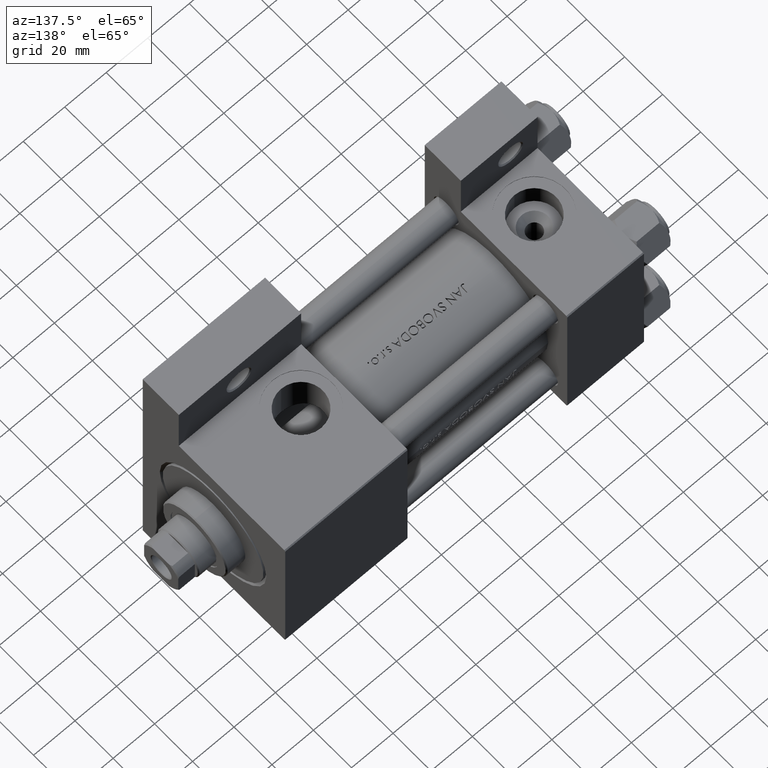
[diagram: clean part render]
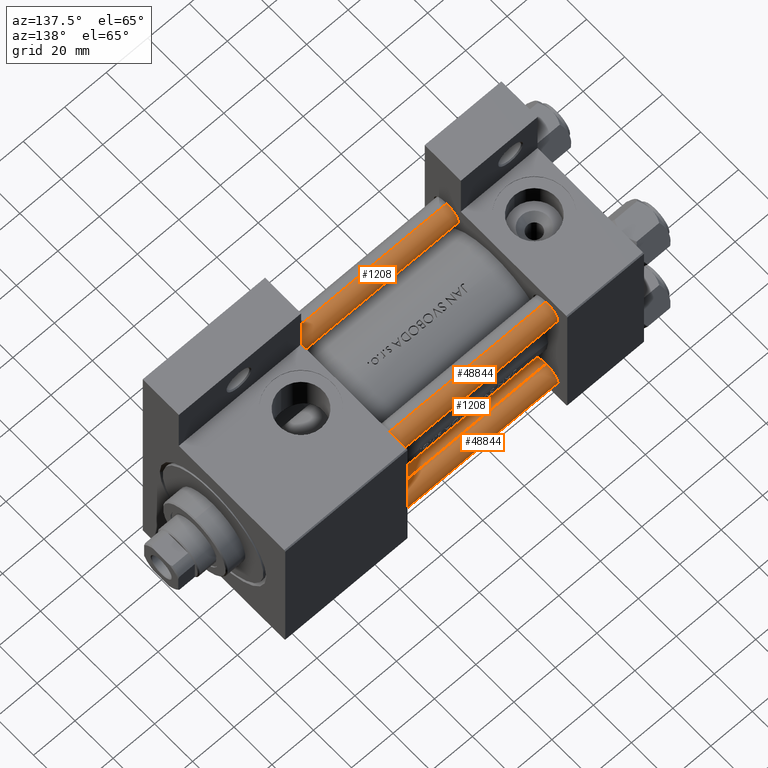
[diagram: same view with one multi-face feature highlighted, each face labeled with its STEP entity id]
A machine part, auxiliary view. The highlighted faces form ONE feature: a constant-radius fillet chain: 4 tangent blend faces with common blend radius 6 mm. The faces share edges in the B-rep.
Their STEP definitions:
[1] entity #48844 (Cylinder):
#1151 = CIRCLE ( 'NONE', #34580, 6.000000000000000888 ) ;
#2144 = EDGE_CURVE ( 'NONE', #30320, #35912, #23430, .T. ) ;
#2688 = CARTESIAN_POINT ( 'NONE',  ( 6.000000000000000888, 7.347880794884120722E-16, 143.0000000000000000 ) ) ;
#3276 = CARTESIAN_POINT ( 'NONE',  ( -6.000000000000000888, 0.000000000000000000, 142.5000000000000000 ) ) ;
#3711 = ORIENTED_EDGE ( 'NONE', *, *, #45344, .T. ) ;
#5593 = CYLINDRICAL_SURFACE ( 'NONE', #22602, 6.000000000000000888 ) ;
#5954 = ORIENTED_EDGE ( 'NONE', *, *, #2144, .T. ) ;
#6485 = CARTESIAN_POINT ( 'NONE',  ( -6.000000000000000888, 0.000000000000000000, 0.5000000000000281997 ) ) ;
#8303 = AXIS2_PLACEMENT_3D ( 'NONE', #24395, #20905, #15927 ) ;
#8480 = CARTESIAN_POINT ( 'NONE',  ( 6.000000000000000888, 7.347880794884120722E-16, 142.5000000000000000 ) ) ;
#9822 = CARTESIAN_POINT ( 'NONE',  ( 0.000000000000000000, 0.000000000000000000, 143.0000000000000000 ) ) ;
#11067 = CARTESIAN_POINT ( 'NONE',  ( 6.000000000000000888, 7.347880794884120722E-16, 0.5000000000000281997 ) ) ;
#11159 = VECTOR ( 'NONE', #22698, 1000.000000000000000 ) ;
#12402 = ORIENTED_EDGE ( 'NONE', *, *, #21842, .F. ) ;
#13829 = VERTEX_POINT ( 'NONE', #6485 ) ;
#15927 = DIRECTION ( 'NONE',  ( 1.000000000000000000, 0.000000000000000000, 0.000000000000000000 ) ) ;
#16566 = FACE_OUTER_BOUND ( 'NONE', #30965, .T. ) ;
#16859 = DIRECTION ( 'NONE',  ( 1.000000000000000000, 0.000000000000000000, 0.000000000000000000 ) ) ;
#18944 = LINE ( 'NONE', #38856, #11159 ) ;
#20624 = CARTESIAN_POINT ( 'NONE',  ( 0.000000000000000000, 0.000000000000000000, 0.5000000000000281997 ) ) ;
#20905 = DIRECTION ( 'NONE',  ( 0.000000000000000000, 0.000000000000000000, -1.000000000000000000 ) ) ;
#21842 = EDGE_CURVE ( 'NONE', #30320, #13829, #18944, .T. ) ;
#22602 = AXIS2_PLACEMENT_3D ( 'NONE', #9822, #32519, #35510 ) ;
#22698 = DIRECTION ( 'NONE',  ( -0.000000000000000000, -0.000000000000000000, -1.000000000000000000 ) ) ;
#23430 = CIRCLE ( 'NONE', #8303, 6.000000000000000888 ) ;
#24395 = CARTESIAN_POINT ( 'NONE',  ( 0.000000000000000000, 0.000000000000000000, 142.5000000000000000 ) ) ;
#30320 = VERTEX_POINT ( 'NONE', #3276 ) ;
#30965 = EDGE_LOOP ( 'NONE', ( #5954, #3711, #36803, #12402 ) ) ;
#32519 = DIRECTION ( 'NONE',  ( -0.000000000000000000, -0.000000000000000000, -1.000000000000000000 ) ) ;
#34580 = AXIS2_PLACEMENT_3D ( 'NONE', #20624, #43764, #16859 ) ;
#35510 = DIRECTION ( 'NONE',  ( -1.000000000000000000, 0.000000000000000000, 0.000000000000000000 ) ) ;
#35912 = VERTEX_POINT ( 'NONE', #8480 ) ;
#36803 = ORIENTED_EDGE ( 'NONE', *, *, #38517, .T. ) ;
#36823 = LINE ( 'NONE', #2688, #39947 ) ;
#38517 = EDGE_CURVE ( 'NONE', #42749, #13829, #1151, .T. ) ;
#38856 = CARTESIAN_POINT ( 'NONE',  ( -6.000000000000000888, 0.000000000000000000, 143.0000000000000000 ) ) ;
#39947 = VECTOR ( 'NONE', #43806, 1000.000000000000000 ) ;
#42749 = VERTEX_POINT ( 'NONE', #11067 ) ;
#43764 = DIRECTION ( 'NONE',  ( -0.000000000000000000, -0.000000000000000000, 1.000000000000000000 ) ) ;
#43806 = DIRECTION ( 'NONE',  ( -0.000000000000000000, -0.000000000000000000, -1.000000000000000000 ) ) ;
#45344 = EDGE_CURVE ( 'NONE', #35912, #42749, #36823, .T. ) ;
#48844 = ADVANCED_FACE ( 'NONE', ( #16566 ), #5593, .T. ) ;
[2] entity #1208 (Cylinder):
#1208 = ADVANCED_FACE ( 'NONE', ( #49096 ), #21751, .T. ) ;
#1222 = EDGE_CURVE ( 'NONE', #35912, #30320, #20227, .T. ) ;
#2688 = CARTESIAN_POINT ( 'NONE',  ( 6.000000000000000888, 7.347880794884120722E-16, 143.0000000000000000 ) ) ;
#3276 = CARTESIAN_POINT ( 'NONE',  ( -6.000000000000000888, 0.000000000000000000, 142.5000000000000000 ) ) ;
#4270 = AXIS2_PLACEMENT_3D ( 'NONE', #6659, #14144, #43350 ) ;
#6485 = CARTESIAN_POINT ( 'NONE',  ( -6.000000000000000888, 0.000000000000000000, 0.5000000000000281997 ) ) ;
#6545 = CARTESIAN_POINT ( 'NONE',  ( 0.000000000000000000, 0.000000000000000000, 143.0000000000000000 ) ) ;
#6659 = CARTESIAN_POINT ( 'NONE',  ( 0.000000000000000000, 0.000000000000000000, 0.5000000000000281997 ) ) ;
#6795 = CARTESIAN_POINT ( 'NONE',  ( 0.000000000000000000, 0.000000000000000000, 142.5000000000000000 ) ) ;
#7485 = AXIS2_PLACEMENT_3D ( 'NONE', #6545, #25988, #40907 ) ;
#8480 = CARTESIAN_POINT ( 'NONE',  ( 6.000000000000000888, 7.347880794884120722E-16, 142.5000000000000000 ) ) ;
#11067 = CARTESIAN_POINT ( 'NONE',  ( 6.000000000000000888, 7.347880794884120722E-16, 0.5000000000000281997 ) ) ;
#11159 = VECTOR ( 'NONE', #22698, 1000.000000000000000 ) ;
#12608 = ORIENTED_EDGE ( 'NONE', *, *, #21842, .T. ) ;
#13829 = VERTEX_POINT ( 'NONE', #6485 ) ;
#14144 = DIRECTION ( 'NONE',  ( -0.000000000000000000, -0.000000000000000000, 1.000000000000000000 ) ) ;
#15002 = DIRECTION ( 'NONE',  ( 0.000000000000000000, 0.000000000000000000, -1.000000000000000000 ) ) ;
#17012 = CIRCLE ( 'NONE', #4270, 6.000000000000000888 ) ;
#18944 = LINE ( 'NONE', #38856, #11159 ) ;
#20227 = CIRCLE ( 'NONE', #36120, 6.000000000000000888 ) ;
#21525 = EDGE_LOOP ( 'NONE', ( #37709, #43457, #12608, #46022 ) ) ;
#21751 = CYLINDRICAL_SURFACE ( 'NONE', #7485, 6.000000000000000888 ) ;
#21842 = EDGE_CURVE ( 'NONE', #30320, #13829, #18944, .T. ) ;
#22698 = DIRECTION ( 'NONE',  ( -0.000000000000000000, -0.000000000000000000, -1.000000000000000000 ) ) ;
#25988 = DIRECTION ( 'NONE',  ( -0.000000000000000000, -0.000000000000000000, -1.000000000000000000 ) ) ;
#30320 = VERTEX_POINT ( 'NONE', #3276 ) ;
#33156 = EDGE_CURVE ( 'NONE', #13829, #42749, #17012, .T. ) ;
#35912 = VERTEX_POINT ( 'NONE', #8480 ) ;
#36120 = AXIS2_PLACEMENT_3D ( 'NONE', #6795, #15002, #48124 ) ;
#36823 = LINE ( 'NONE', #2688, #39947 ) ;
#37709 = ORIENTED_EDGE ( 'NONE', *, *, #45344, .F. ) ;
#38856 = CARTESIAN_POINT ( 'NONE',  ( -6.000000000000000888, 0.000000000000000000, 143.0000000000000000 ) ) ;
#39947 = VECTOR ( 'NONE', #43806, 1000.000000000000000 ) ;
#40907 = DIRECTION ( 'NONE',  ( -1.000000000000000000, 0.000000000000000000, 0.000000000000000000 ) ) ;
#42749 = VERTEX_POINT ( 'NONE', #11067 ) ;
#43350 = DIRECTION ( 'NONE',  ( 1.000000000000000000, 0.000000000000000000, 0.000000000000000000 ) ) ;
#43457 = ORIENTED_EDGE ( 'NONE', *, *, #1222, .T. ) ;
#43806 = DIRECTION ( 'NONE',  ( -0.000000000000000000, -0.000000000000000000, -1.000000000000000000 ) ) ;
#45344 = EDGE_CURVE ( 'NONE', #35912, #42749, #36823, .T. ) ;
#46022 = ORIENTED_EDGE ( 'NONE', *, *, #33156, .T. ) ;
#48124 = DIRECTION ( 'NONE',  ( 1.000000000000000000, 0.000000000000000000, 0.000000000000000000 ) ) ;
#49096 = FACE_OUTER_BOUND ( 'NONE', #21525, .T. ) ;
[3] entity #48844 (Cylinder):
#1151 = CIRCLE ( 'NONE', #34580, 6.000000000000000888 ) ;
#2144 = EDGE_CURVE ( 'NONE', #30320, #35912, #23430, .T. ) ;
#2688 = CARTESIAN_POINT ( 'NONE',  ( 6.000000000000000888, 7.347880794884120722E-16, 143.0000000000000000 ) ) ;
#3276 = CARTESIAN_POINT ( 'NONE',  ( -6.000000000000000888, 0.000000000000000000, 142.5000000000000000 ) ) ;
#3711 = ORIENTED_EDGE ( 'NONE', *, *, #45344, .T. ) ;
#5593 = CYLINDRICAL_SURFACE ( 'NONE', #22602, 6.000000000000000888 ) ;
#5954 = ORIENTED_EDGE ( 'NONE', *, *, #2144, .T. ) ;
#6485 = CARTESIAN_POINT ( 'NONE',  ( -6.000000000000000888, 0.000000000000000000, 0.5000000000000281997 ) ) ;
#8303 = AXIS2_PLACEMENT_3D ( 'NONE', #24395, #20905, #15927 ) ;
#8480 = CARTESIAN_POINT ( 'NONE',  ( 6.000000000000000888, 7.347880794884120722E-16, 142.5000000000000000 ) ) ;
#9822 = CARTESIAN_POINT ( 'NONE',  ( 0.000000000000000000, 0.000000000000000000, 143.0000000000000000 ) ) ;
#11067 = CARTESIAN_POINT ( 'NONE',  ( 6.000000000000000888, 7.347880794884120722E-16, 0.5000000000000281997 ) ) ;
#11159 = VECTOR ( 'NONE', #22698, 1000.000000000000000 ) ;
#12402 = ORIENTED_EDGE ( 'NONE', *, *, #21842, .F. ) ;
#13829 = VERTEX_POINT ( 'NONE', #6485 ) ;
#15927 = DIRECTION ( 'NONE',  ( 1.000000000000000000, 0.000000000000000000, 0.000000000000000000 ) ) ;
#16566 = FACE_OUTER_BOUND ( 'NONE', #30965, .T. ) ;
#16859 = DIRECTION ( 'NONE',  ( 1.000000000000000000, 0.000000000000000000, 0.000000000000000000 ) ) ;
#18944 = LINE ( 'NONE', #38856, #11159 ) ;
#20624 = CARTESIAN_POINT ( 'NONE',  ( 0.000000000000000000, 0.000000000000000000, 0.5000000000000281997 ) ) ;
#20905 = DIRECTION ( 'NONE',  ( 0.000000000000000000, 0.000000000000000000, -1.000000000000000000 ) ) ;
#21842 = EDGE_CURVE ( 'NONE', #30320, #13829, #18944, .T. ) ;
#22602 = AXIS2_PLACEMENT_3D ( 'NONE', #9822, #32519, #35510 ) ;
#22698 = DIRECTION ( 'NONE',  ( -0.000000000000000000, -0.000000000000000000, -1.000000000000000000 ) ) ;
#23430 = CIRCLE ( 'NONE', #8303, 6.000000000000000888 ) ;
#24395 = CARTESIAN_POINT ( 'NONE',  ( 0.000000000000000000, 0.000000000000000000, 142.5000000000000000 ) ) ;
#30320 = VERTEX_POINT ( 'NONE', #3276 ) ;
#30965 = EDGE_LOOP ( 'NONE', ( #5954, #3711, #36803, #12402 ) ) ;
#32519 = DIRECTION ( 'NONE',  ( -0.000000000000000000, -0.000000000000000000, -1.000000000000000000 ) ) ;
#34580 = AXIS2_PLACEMENT_3D ( 'NONE', #20624, #43764, #16859 ) ;
#35510 = DIRECTION ( 'NONE',  ( -1.000000000000000000, 0.000000000000000000, 0.000000000000000000 ) ) ;
#35912 = VERTEX_POINT ( 'NONE', #8480 ) ;
#36803 = ORIENTED_EDGE ( 'NONE', *, *, #38517, .T. ) ;
#36823 = LINE ( 'NONE', #2688, #39947 ) ;
#38517 = EDGE_CURVE ( 'NONE', #42749, #13829, #1151, .T. ) ;
#38856 = CARTESIAN_POINT ( 'NONE',  ( -6.000000000000000888, 0.000000000000000000, 143.0000000000000000 ) ) ;
#39947 = VECTOR ( 'NONE', #43806, 1000.000000000000000 ) ;
#42749 = VERTEX_POINT ( 'NONE', #11067 ) ;
#43764 = DIRECTION ( 'NONE',  ( -0.000000000000000000, -0.000000000000000000, 1.000000000000000000 ) ) ;
#43806 = DIRECTION ( 'NONE',  ( -0.000000000000000000, -0.000000000000000000, -1.000000000000000000 ) ) ;
#45344 = EDGE_CURVE ( 'NONE', #35912, #42749, #36823, .T. ) ;
#48844 = ADVANCED_FACE ( 'NONE', ( #16566 ), #5593, .T. ) ;
[4] entity #1208 (Cylinder):
#1208 = ADVANCED_FACE ( 'NONE', ( #49096 ), #21751, .T. ) ;
#1222 = EDGE_CURVE ( 'NONE', #35912, #30320, #20227, .T. ) ;
#2688 = CARTESIAN_POINT ( 'NONE',  ( 6.000000000000000888, 7.347880794884120722E-16, 143.0000000000000000 ) ) ;
#3276 = CARTESIAN_POINT ( 'NONE',  ( -6.000000000000000888, 0.000000000000000000, 142.5000000000000000 ) ) ;
#4270 = AXIS2_PLACEMENT_3D ( 'NONE', #6659, #14144, #43350 ) ;
#6485 = CARTESIAN_POINT ( 'NONE',  ( -6.000000000000000888, 0.000000000000000000, 0.5000000000000281997 ) ) ;
#6545 = CARTESIAN_POINT ( 'NONE',  ( 0.000000000000000000, 0.000000000000000000, 143.0000000000000000 ) ) ;
#6659 = CARTESIAN_POINT ( 'NONE',  ( 0.000000000000000000, 0.000000000000000000, 0.5000000000000281997 ) ) ;
#6795 = CARTESIAN_POINT ( 'NONE',  ( 0.000000000000000000, 0.000000000000000000, 142.5000000000000000 ) ) ;
#7485 = AXIS2_PLACEMENT_3D ( 'NONE', #6545, #25988, #40907 ) ;
#8480 = CARTESIAN_POINT ( 'NONE',  ( 6.000000000000000888, 7.347880794884120722E-16, 142.5000000000000000 ) ) ;
#11067 = CARTESIAN_POINT ( 'NONE',  ( 6.000000000000000888, 7.347880794884120722E-16, 0.5000000000000281997 ) ) ;
#11159 = VECTOR ( 'NONE', #22698, 1000.000000000000000 ) ;
#12608 = ORIENTED_EDGE ( 'NONE', *, *, #21842, .T. ) ;
#13829 = VERTEX_POINT ( 'NONE', #6485 ) ;
#14144 = DIRECTION ( 'NONE',  ( -0.000000000000000000, -0.000000000000000000, 1.000000000000000000 ) ) ;
#15002 = DIRECTION ( 'NONE',  ( 0.000000000000000000, 0.000000000000000000, -1.000000000000000000 ) ) ;
#17012 = CIRCLE ( 'NONE', #4270, 6.000000000000000888 ) ;
#18944 = LINE ( 'NONE', #38856, #11159 ) ;
#20227 = CIRCLE ( 'NONE', #36120, 6.000000000000000888 ) ;
#21525 = EDGE_LOOP ( 'NONE', ( #37709, #43457, #12608, #46022 ) ) ;
#21751 = CYLINDRICAL_SURFACE ( 'NONE', #7485, 6.000000000000000888 ) ;
#21842 = EDGE_CURVE ( 'NONE', #30320, #13829, #18944, .T. ) ;
#22698 = DIRECTION ( 'NONE',  ( -0.000000000000000000, -0.000000000000000000, -1.000000000000000000 ) ) ;
#25988 = DIRECTION ( 'NONE',  ( -0.000000000000000000, -0.000000000000000000, -1.000000000000000000 ) ) ;
#30320 = VERTEX_POINT ( 'NONE', #3276 ) ;
#33156 = EDGE_CURVE ( 'NONE', #13829, #42749, #17012, .T. ) ;
#35912 = VERTEX_POINT ( 'NONE', #8480 ) ;
#36120 = AXIS2_PLACEMENT_3D ( 'NONE', #6795, #15002, #48124 ) ;
#36823 = LINE ( 'NONE', #2688, #39947 ) ;
#37709 = ORIENTED_EDGE ( 'NONE', *, *, #45344, .F. ) ;
#38856 = CARTESIAN_POINT ( 'NONE',  ( -6.000000000000000888, 0.000000000000000000, 143.0000000000000000 ) ) ;
#39947 = VECTOR ( 'NONE', #43806, 1000.000000000000000 ) ;
#40907 = DIRECTION ( 'NONE',  ( -1.000000000000000000, 0.000000000000000000, 0.000000000000000000 ) ) ;
#42749 = VERTEX_POINT ( 'NONE', #11067 ) ;
#43350 = DIRECTION ( 'NONE',  ( 1.000000000000000000, 0.000000000000000000, 0.000000000000000000 ) ) ;
#43457 = ORIENTED_EDGE ( 'NONE', *, *, #1222, .T. ) ;
#43806 = DIRECTION ( 'NONE',  ( -0.000000000000000000, -0.000000000000000000, -1.000000000000000000 ) ) ;
#45344 = EDGE_CURVE ( 'NONE', #35912, #42749, #36823, .T. ) ;
#46022 = ORIENTED_EDGE ( 'NONE', *, *, #33156, .T. ) ;
#48124 = DIRECTION ( 'NONE',  ( 1.000000000000000000, 0.000000000000000000, 0.000000000000000000 ) ) ;
#49096 = FACE_OUTER_BOUND ( 'NONE', #21525, .T. ) ;